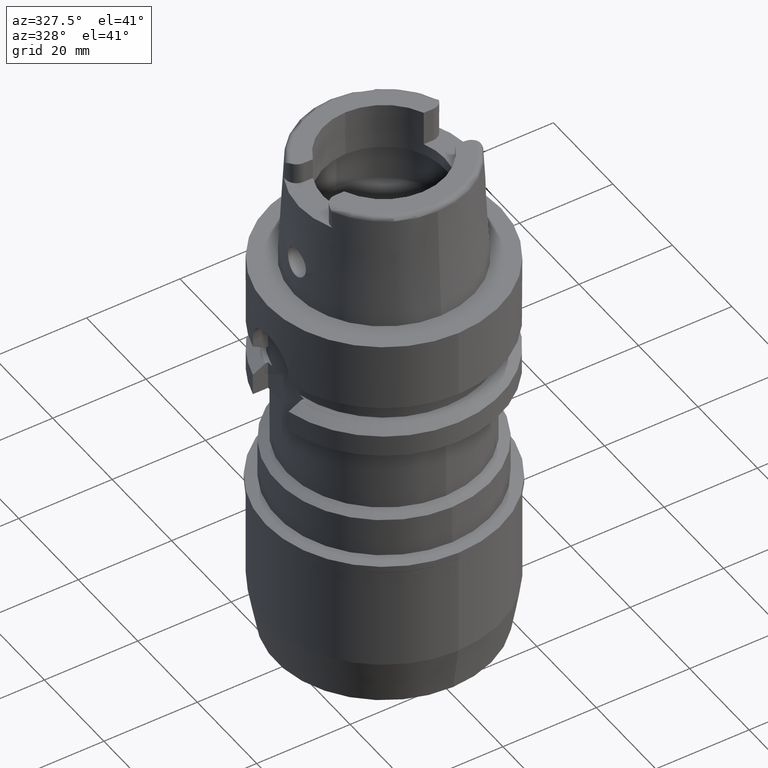
[diagram: clean part render]
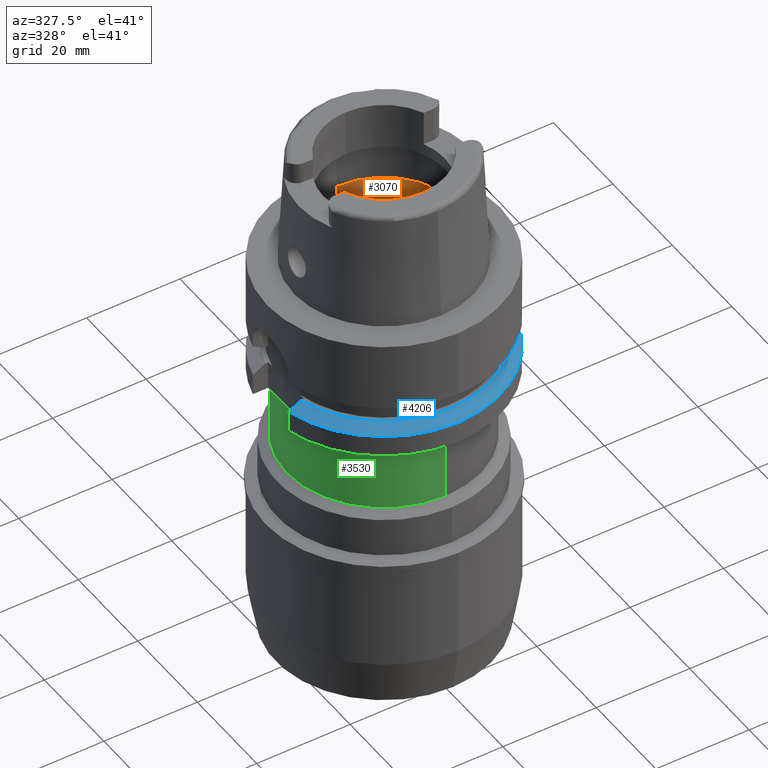
[diagram: same view with three faces highlighted in distinct colors, each labeled with its STEP entity id]
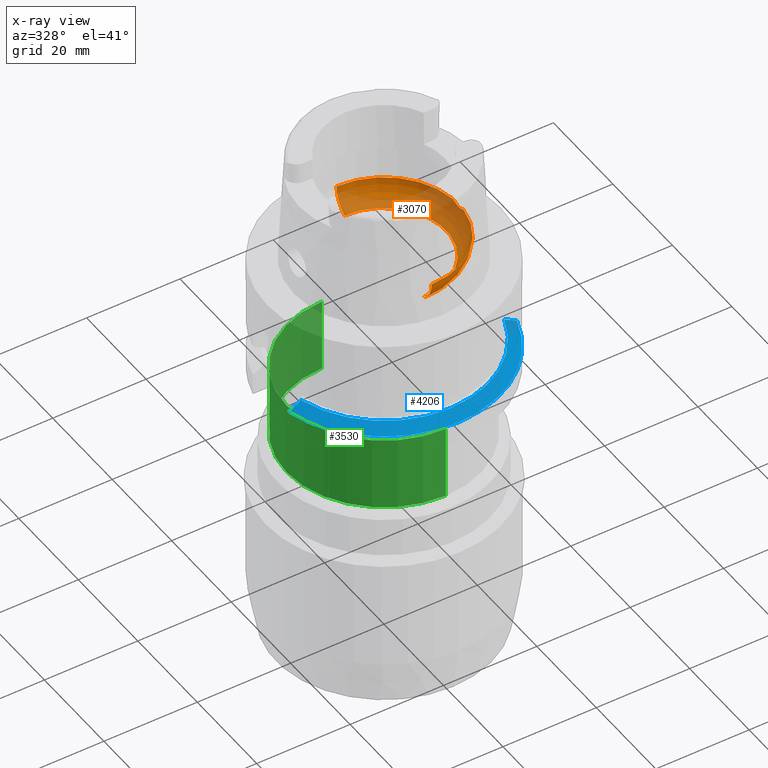
[diagram: x-ray of the same camera — body ghosted, the three highlighted faces saturated]
A machine part, auxiliary view with three faces highlighted in distinct colors.
The next image is the same camera in x-ray (body ghosted, the three faces saturated) — at least one of them is partly hidden behind the body in this view.
Their STEP definitions:

[orange] entity #3070 — the highlighted toroidal blend (fillet) surface has major radius 10 mm and minor (blend) radius 6 mm.
#648=CARTESIAN_POINT('',(0.E0,-1.E1,5.060987926547E0));
#649=DIRECTION('',(-1.E0,0.E0,0.E0));
#650=DIRECTION('',(0.E0,-5.5E-1,-8.351646544245E-1));
#651=AXIS2_PLACEMENT_3D('',#648,#649,#650);
#664=CARTESIAN_POINT('',(1.597371681169E1,0.E0,4.5E0));
#665=CARTESIAN_POINT('',(1.597371681169E1,-2.084869154196E-1,4.5E0));
#666=CARTESIAN_POINT('',(1.596977927161E1,-6.246018505123E-1,4.543550774118E0));
#667=CARTESIAN_POINT('',(1.594968354006E1,-1.220670860294E0,4.736062917634E0));
#668=CARTESIAN_POINT('',(1.592267588164E1,-1.580040572955E0,4.941576464407E0));
#669=CARTESIAN_POINT('',(1.590436354886E1,-1.746774199933E0,5.060987926547E0));
#674=CARTESIAN_POINT('',(0.E0,0.E0,5.060987926547E0));
#675=DIRECTION('',(0.E0,0.E0,-1.E0));
#676=DIRECTION('',(9.940227218040E-1,-1.091733874958E-1,0.E0));
#677=AXIS2_PLACEMENT_3D('',#674,#675,#676);
#682=CARTESIAN_POINT('',(0.E0,0.E0,5.E-2));
#683=DIRECTION('',(0.E0,0.E0,1.E0));
#684=DIRECTION('',(0.E0,-1.E0,0.E0));
#685=AXIS2_PLACEMENT_3D('',#682,#683,#684);
#690=CARTESIAN_POINT('',(0.E0,1.E1,5.060987926547E0));
#691=DIRECTION('',(1.E0,0.E0,0.E0));
#692=DIRECTION('',(0.E0,5.5E-1,-8.351646544245E-1));
#693=AXIS2_PLACEMENT_3D('',#690,#691,#692);
#698=CARTESIAN_POINT('',(0.E0,0.E0,5.060987926547E0));
#699=DIRECTION('',(0.E0,0.E0,-1.E0));
#700=DIRECTION('',(0.E0,1.E0,0.E0));
#701=AXIS2_PLACEMENT_3D('',#698,#699,#700);
#706=CARTESIAN_POINT('',(1.590436354886E1,1.746774199933E0,5.060987926547E0));
#707=CARTESIAN_POINT('',(1.592267653660E1,1.580034609521E0,4.941572193509E0));
#708=CARTESIAN_POINT('',(1.594968434089E1,1.220655140583E0,4.736055930978E0));
#709=CARTESIAN_POINT('',(1.596977934620E1,6.245935958384E-1,4.543549764920E0));
#710=CARTESIAN_POINT('',(1.597371681169E1,2.084834520804E-1,4.5E0));
#711=CARTESIAN_POINT('',(1.597371681169E1,0.E0,4.5E0));
#723=CARTESIAN_POINT('',(1.590436354886E1,-1.746774199933E0,5.060987926547E0));
#752=CARTESIAN_POINT('',(1.590436354886E1,1.746774199933E0,5.060987926547E0));
#2408=CARTESIAN_POINT('',(0.E0,-1.6E1,5.060987926547E0));
#2409=VERTEX_POINT('',#2408);
#2410=CARTESIAN_POINT('',(0.E0,1.6E1,5.060987926547E0));
#2411=VERTEX_POINT('',#2410);
#2416=VERTEX_POINT('',#723);
#2418=VERTEX_POINT('',#664);
#2419=VERTEX_POINT('',#752);
#2420=CARTESIAN_POINT('',(0.E0,1.33E1,5.E-2));
#2421=VERTEX_POINT('',#2420);
#2422=CARTESIAN_POINT('',(0.E0,-1.33E1,5.E-2));
#2423=VERTEX_POINT('',#2422);
#3051=CARTESIAN_POINT('',(0.E0,0.E0,5.060987926547E0));
#3052=DIRECTION('',(0.E0,0.E0,1.E0));
#3053=DIRECTION('',(0.E0,1.E0,0.E0));
#3054=AXIS2_PLACEMENT_3D('',#3051,#3052,#3053);
#3055=TOROIDAL_SURFACE('',#3054,1.E1,6.E0);
#3057=ORIENTED_EDGE('',*,*,#3056,.T.);
#3059=ORIENTED_EDGE('',*,*,#3058,.T.);
#3060=ORIENTED_EDGE('',*,*,#3045,.F.);
#3062=ORIENTED_EDGE('',*,*,#3061,.T.);
#3063=ORIENTED_EDGE('',*,*,#3041,.T.);
#3065=ORIENTED_EDGE('',*,*,#3064,.T.);
#3067=ORIENTED_EDGE('',*,*,#3066,.T.);
#3068=EDGE_LOOP('',(#3057,#3059,#3060,#3062,#3063,#3065,#3067));
#3069=FACE_OUTER_BOUND('',#3068,.F.);
#652=CIRCLE('',#651,6.E0);
#670=B_SPLINE_CURVE_WITH_KNOTS('',3,(#664,#665,#666,#667,#668,#669),
.UNSPECIFIED.,.F.,.F.,(4,1,1,4),(0.E0,3.333333333333E-1,6.666666666667E-1,1.E0),
.UNSPECIFIED.);
#678=CIRCLE('',#677,1.6E1);
#686=CIRCLE('',#685,1.33E1);
#694=CIRCLE('',#693,6.E0);
#702=CIRCLE('',#701,1.6E1);
#712=B_SPLINE_CURVE_WITH_KNOTS('',3,(#706,#707,#708,#709,#710,#711),
.UNSPECIFIED.,.F.,.F.,(4,1,1,4),(0.E0,3.333333333333E-1,6.666666666667E-1,1.E0),
.UNSPECIFIED.);
#3041=EDGE_CURVE('',#2421,#2411,#694,.T.);
#3045=EDGE_CURVE('',#2423,#2409,#652,.T.);
#3056=EDGE_CURVE('',#2418,#2416,#670,.T.);
#3058=EDGE_CURVE('',#2416,#2409,#678,.T.);
#3061=EDGE_CURVE('',#2423,#2421,#686,.T.);
#3064=EDGE_CURVE('',#2411,#2419,#702,.T.);
#3066=EDGE_CURVE('',#2419,#2418,#712,.T.);
#3070=ADVANCED_FACE('',(#3069),#3055,.F.);

[blue] entity #4206 — the highlighted conical surface has half-angle 60 deg.
#1410=CARTESIAN_POINT('',(2.400000006357E1,-6.999999782046E0,
-2.137749728178E1));
#1411=CARTESIAN_POINT('',(2.369764531411E1,-6.999999782046E0,
-2.120991526830E1));
#1412=CARTESIAN_POINT('',(2.309274502532E1,-6.999999947286E0,
-2.087508850228E1));
#1413=CARTESIAN_POINT('',(2.218460291134E1,-7.000000511431E0,
-2.037429305847E1));
#1414=CARTESIAN_POINT('',(2.157872604591E1,-6.999998841804E0,
-2.004121990211E1));
#1415=CARTESIAN_POINT('',(2.127564228644E1,-6.999998841804E0,-1.9875E1));
#1448=CARTESIAN_POINT('',(-2.157897422019E1,-6.000000213078E0,-1.9875E1));
#1449=CARTESIAN_POINT('',(-2.187818902468E1,-6.000000213078E0,
-2.004143778144E1));
#1450=CARTESIAN_POINT('',(-2.247638525656E1,-5.999999988853E0,
-2.037470931157E1));
#1451=CARTESIAN_POINT('',(-2.337318366215E1,-5.999999719397E0,
-2.087551752723E1));
#1452=CARTESIAN_POINT('',(-2.397064488008E1,-6.000000662171E0,
-2.121010406434E1));
#1453=CARTESIAN_POINT('',(-2.426932203532E1,-6.000000662171E0,
-2.137750543468E1));
#2156=CARTESIAN_POINT('',(0.E0,0.E0,-1.9875E1));
#2157=DIRECTION('',(0.E0,0.E0,-1.E0));
#2158=DIRECTION('',(9.499067212052E-1,-3.125335518136E-1,0.E0));
#2159=AXIS2_PLACEMENT_3D('',#2156,#2157,#2158);
#2164=CARTESIAN_POINT('',(0.E0,0.E0,-1.9875E1));
#2165=DIRECTION('',(0.E0,0.E0,-1.E0));
#2166=DIRECTION('',(0.E0,-1.E0,0.E0));
#2167=AXIS2_PLACEMENT_3D('',#2164,#2165,#2166);
#2172=CARTESIAN_POINT('',(0.E0,0.E0,-2.137749907476E1));
#2173=DIRECTION('',(0.E0,0.E0,-1.E0));
#2174=DIRECTION('',(9.6E-1,-2.8E-1,0.E0));
#2175=AXIS2_PLACEMENT_3D('',#2172,#2173,#2174);
#2180=CARTESIAN_POINT('',(0.E0,0.E0,-2.137749907476E1));
#2181=DIRECTION('',(0.E0,0.E0,-1.E0));
#2182=DIRECTION('',(0.E0,-1.E0,0.E0));
#2183=AXIS2_PLACEMENT_3D('',#2180,#2181,#2182);
#2532=CARTESIAN_POINT('',(-2.426932203532E1,-6.000000662171E0,
-2.137750543468E1));
#2533=VERTEX_POINT('',#2532);
#2534=CARTESIAN_POINT('',(2.4E1,-7.E0,-2.137749907476E1));
#2535=CARTESIAN_POINT('',(0.E0,-2.5E1,-2.137749907476E1));
#2536=VERTEX_POINT('',#2534);
#2537=VERTEX_POINT('',#2535);
#2548=CARTESIAN_POINT('',(-2.157897422019E1,-6.000000213078E0,-1.9875E1));
#2549=VERTEX_POINT('',#2548);
#2582=CARTESIAN_POINT('',(0.E0,-2.239759526419E1,-1.9875E1));
#2583=VERTEX_POINT('',#2582);
#2584=CARTESIAN_POINT('',(2.127562628029E1,-7.E0,-1.9875E1));
#2585=VERTEX_POINT('',#2584);
#4193=CARTESIAN_POINT('',(0.E0,0.E0,-2.062624953738E1));
#4194=DIRECTION('',(0.E0,0.E0,-1.E0));
#4195=DIRECTION('',(0.E0,-1.E0,0.E0));
#4196=AXIS2_PLACEMENT_3D('',#4193,#4194,#4195);
#4197=CONICAL_SURFACE('',#4196,2.369879763210E1,6.E1);
#4198=ORIENTED_EDGE('',*,*,#3709,.F.);
#4199=ORIENTED_EDGE('',*,*,#4187,.F.);
#4200=ORIENTED_EDGE('',*,*,#4185,.F.);
#4201=ORIENTED_EDGE('',*,*,#3674,.F.);
#4202=ORIENTED_EDGE('',*,*,#3691,.T.);
#4203=ORIENTED_EDGE('',*,*,#3689,.T.);
#4204=EDGE_LOOP('',(#4198,#4199,#4200,#4201,#4202,#4203));
#4205=FACE_OUTER_BOUND('',#4204,.F.);
#1416=B_SPLINE_CURVE_WITH_KNOTS('',3,(#1410,#1411,#1412,#1413,#1414,#1415),
.UNSPECIFIED.,.F.,.F.,(4,1,1,4),(0.E0,3.333333333333E-1,6.666666666667E-1,1.E0),
.UNSPECIFIED.);
#1454=B_SPLINE_CURVE_WITH_KNOTS('',3,(#1448,#1449,#1450,#1451,#1452,#1453),
.UNSPECIFIED.,.F.,.F.,(4,1,1,4),(0.E0,3.333333333333E-1,6.666666666667E-1,1.E0),
.UNSPECIFIED.);
#2160=CIRCLE('',#2159,2.239759526419E1);
#2168=CIRCLE('',#2167,2.239759526419E1);
#2176=CIRCLE('',#2175,2.5E1);
#2184=CIRCLE('',#2183,2.5E1);
#3674=EDGE_CURVE('',#2536,#2585,#1416,.T.);
#3689=EDGE_CURVE('',#2537,#2533,#2184,.T.);
#3691=EDGE_CURVE('',#2536,#2537,#2176,.T.);
#3709=EDGE_CURVE('',#2549,#2533,#1454,.T.);
#4185=EDGE_CURVE('',#2585,#2583,#2160,.T.);
#4187=EDGE_CURVE('',#2583,#2549,#2168,.T.);
#4206=ADVANCED_FACE('',(#4205),#4197,.T.);

[green] entity #3530 — the highlighted cylindrical surface (partial cylindrical patch) has radius 20.8 mm, axis along (0, 0, 1).
#1172=CARTESIAN_POINT('',(0.E0,0.E0,-4.2E1));
#1173=DIRECTION('',(0.E0,0.E0,1.E0));
#1174=DIRECTION('',(0.E0,1.E0,0.E0));
#1175=AXIS2_PLACEMENT_3D('',#1172,#1173,#1174);
#1195=DIRECTION('',(0.E0,1.199040866595E-14,-1.E0));
#1196=VECTOR('',#1195,1.6E1);
#1197=CARTESIAN_POINT('',(0.E0,-2.08E1,-2.6E1));
#1198=LINE('',#1197,#1196);
#1202=DIRECTION('',(0.E0,-1.199040866595E-14,-1.E0));
#1203=VECTOR('',#1202,1.6E1);
#1204=CARTESIAN_POINT('',(0.E0,2.08E1,-2.6E1));
#1205=LINE('',#1204,#1203);
#1277=CARTESIAN_POINT('',(0.E0,0.E0,-2.6E1));
#1278=DIRECTION('',(0.E0,0.E0,-1.E0));
#1279=DIRECTION('',(0.E0,-1.E0,0.E0));
#1280=AXIS2_PLACEMENT_3D('',#1277,#1278,#1279);
#2484=CARTESIAN_POINT('',(0.E0,2.08E1,-4.2E1));
#2485=VERTEX_POINT('',#2484);
#2486=CARTESIAN_POINT('',(0.E0,-2.08E1,-4.2E1));
#2487=VERTEX_POINT('',#2486);
#2488=CARTESIAN_POINT('',(0.E0,2.08E1,-2.6E1));
#2489=VERTEX_POINT('',#2488);
#2490=CARTESIAN_POINT('',(0.E0,-2.08E1,-2.6E1));
#2491=VERTEX_POINT('',#2490);
#3516=CARTESIAN_POINT('',(0.E0,0.E0,-9.155E1));
#3517=DIRECTION('',(0.E0,0.E0,1.E0));
#3518=DIRECTION('',(0.E0,1.E0,0.E0));
#3519=AXIS2_PLACEMENT_3D('',#3516,#3517,#3518);
#3520=CYLINDRICAL_SURFACE('',#3519,2.08E1);
#3522=ORIENTED_EDGE('',*,*,#3521,.F.);
#3524=ORIENTED_EDGE('',*,*,#3523,.F.);
#3526=ORIENTED_EDGE('',*,*,#3525,.T.);
#3527=ORIENTED_EDGE('',*,*,#3509,.F.);
#3528=EDGE_LOOP('',(#3522,#3524,#3526,#3527));
#3529=FACE_OUTER_BOUND('',#3528,.F.);
#1176=CIRCLE('',#1175,2.08E1);
#1281=CIRCLE('',#1280,2.08E1);
#3509=EDGE_CURVE('',#2485,#2487,#1176,.T.);
#3521=EDGE_CURVE('',#2489,#2485,#1205,.T.);
#3523=EDGE_CURVE('',#2491,#2489,#1281,.T.);
#3525=EDGE_CURVE('',#2491,#2487,#1198,.T.);
#3530=ADVANCED_FACE('',(#3529),#3520,.T.);